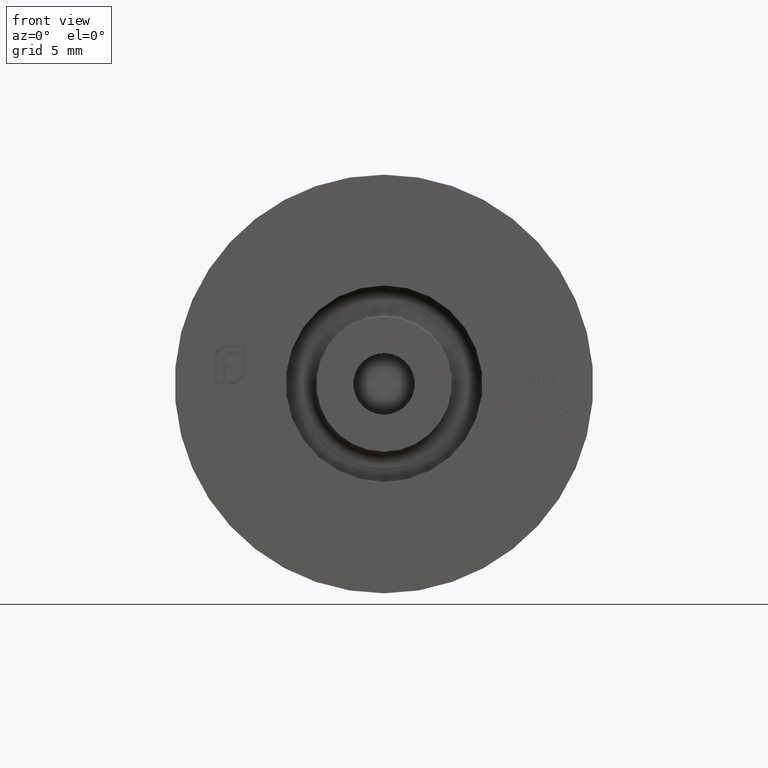
[diagram: clean part render]
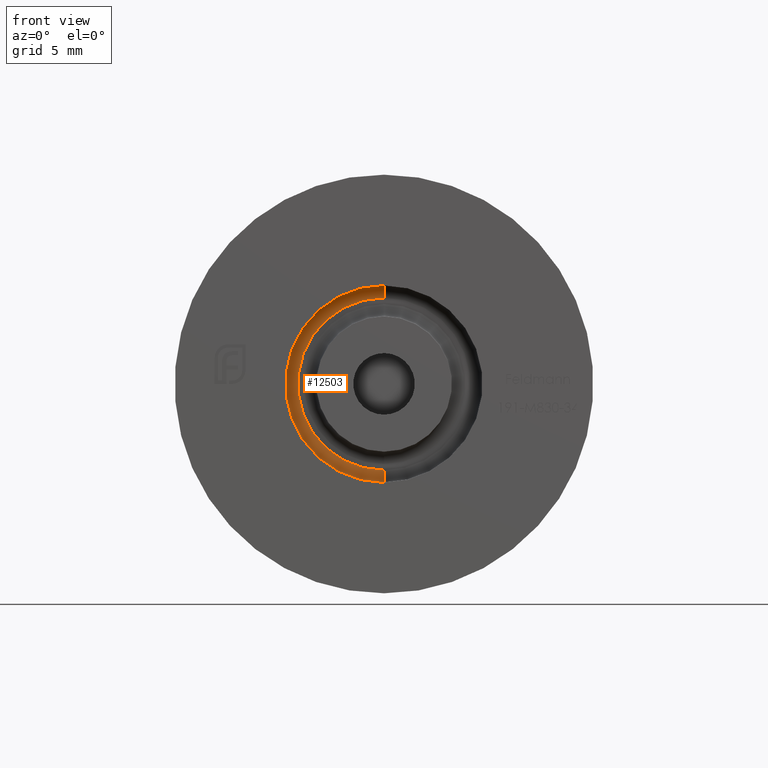
[diagram: same view with one face highlighted and labeled with its STEP entity id]
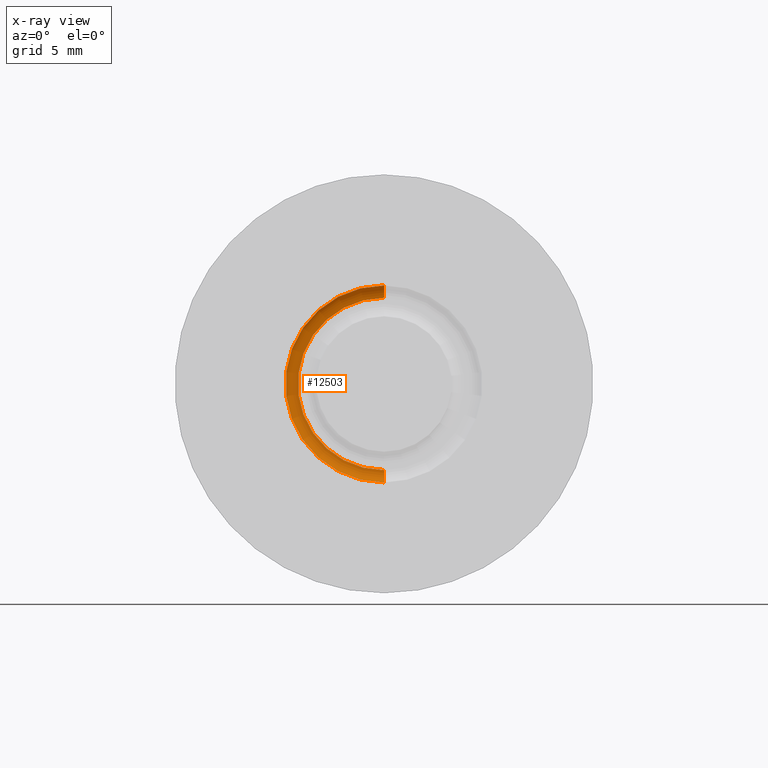
[diagram: x-ray of the same camera — body ghosted, the highlighted face saturated]
A machine part, front view. The second image highlights one B-rep face of the part: STEP entity #12503.
The next image is the same camera in x-ray: the body ghosted, the highlighted face saturated — about 0% of this face is hidden behind the body in this view.
In plain terms, the highlighted toroidal blend (fillet) surface has major radius 7 mm and minor (blend) radius 1 mm.
Its self-contained STEP definition (entity closure, byte-faithful):
#502 = CARTESIAN_POINT ( 'NONE',  ( 0.000000000000000000, 2.000000000000000000, -8.000000000000001776 ) ) ;
#783 = VERTEX_POINT ( 'NONE', #14737 ) ;
#917 = CARTESIAN_POINT ( 'NONE',  ( 9.797174393178827630E-16, 2.000000000000000000, 8.000000000000001776 ) ) ;
#1202 = CIRCLE ( 'NONE', #12814, 1.000000000000000000 ) ;
#1678 = AXIS2_PLACEMENT_3D ( 'NONE', #2332, #2442, #8546 ) ;
#1790 = EDGE_CURVE ( 'NONE', #783, #15998, #6166, .T. ) ;
#2332 = CARTESIAN_POINT ( 'NONE',  ( 0.000000000000000000, 2.000000000000000000, 0.000000000000000000 ) ) ;
#2442 = DIRECTION ( 'NONE',  ( 0.000000000000000000, -1.000000000000000000, 0.000000000000000000 ) ) ;
#2688 = VERTEX_POINT ( 'NONE', #12267 ) ;
#4352 = DIRECTION ( 'NONE',  ( 1.000000000000000000, 0.000000000000000000, -1.224646799147353207E-16 ) ) ;
#4612 = TOROIDAL_SURFACE ( 'NONE', #1678, 7.000000000000001776, 1.000000000000000000 ) ;
#5344 = EDGE_CURVE ( 'NONE', #2688, #10276, #1202, .T. ) ;
#5584 = AXIS2_PLACEMENT_3D ( 'NONE', #14284, #14388, #7000 ) ;
#6166 = CIRCLE ( 'NONE', #12086, 1.000000000000000000 ) ;
#6293 = DIRECTION ( 'NONE',  ( -1.000000000000000000, -0.000000000000000000, -0.000000000000000000 ) ) ;
#6318 = AXIS2_PLACEMENT_3D ( 'NONE', #6446, #8956, #11443 ) ;
#6446 = CARTESIAN_POINT ( 'NONE',  ( 0.000000000000000000, 3.000000000000000000, 0.000000000000000000 ) ) ;
#7000 = DIRECTION ( 'NONE',  ( 0.000000000000000000, 0.000000000000000000, -1.000000000000000000 ) ) ;
#8546 = DIRECTION ( 'NONE',  ( 0.000000000000000000, 0.000000000000000000, -1.000000000000000000 ) ) ;
#8697 = EDGE_LOOP ( 'NONE', ( #11477, #12042, #14931, #9151 ) ) ;
#8809 = EDGE_CURVE ( 'NONE', #783, #2688, #15889, .T. ) ;
#8956 = DIRECTION ( 'NONE',  ( 0.000000000000000000, -1.000000000000000000, 0.000000000000000000 ) ) ;
#9151 = ORIENTED_EDGE ( 'NONE', *, *, #5344, .F. ) ;
#9238 = FACE_OUTER_BOUND ( 'NONE', #8697, .T. ) ;
#10276 = VERTEX_POINT ( 'NONE', #502 ) ;
#11443 = DIRECTION ( 'NONE',  ( 0.000000000000000000, 0.000000000000000000, -1.000000000000000000 ) ) ;
#11477 = ORIENTED_EDGE ( 'NONE', *, *, #8809, .F. ) ;
#11750 = DIRECTION ( 'NONE',  ( -1.224646799147353454E-16, 0.000000000000000000, -1.000000000000000000 ) ) ;
#12042 = ORIENTED_EDGE ( 'NONE', *, *, #1790, .T. ) ;
#12043 = EDGE_CURVE ( 'NONE', #10276, #15998, #12949, .T. ) ;
#12086 = AXIS2_PLACEMENT_3D ( 'NONE', #14255, #4352, #11750 ) ;
#12267 = CARTESIAN_POINT ( 'NONE',  ( 0.000000000000000000, 3.000000000000000000, -7.000000000000001776 ) ) ;
#12282 = DIRECTION ( 'NONE',  ( 0.000000000000000000, 0.000000000000000000, 1.000000000000000000 ) ) ;
#12392 = CARTESIAN_POINT ( 'NONE',  ( 0.000000000000000000, 2.000000000000000000, -7.000000000000001776 ) ) ;
#12503 = ADVANCED_FACE ( 'NONE', ( #9238 ), #4612, .F. ) ;
#12814 = AXIS2_PLACEMENT_3D ( 'NONE', #12392, #6293, #12282 ) ;
#12949 = CIRCLE ( 'NONE', #5584, 8.000000000000001776 ) ;
#14255 = CARTESIAN_POINT ( 'NONE',  ( 8.572527594031474176E-16, 2.000000000000000000, 7.000000000000001776 ) ) ;
#14284 = CARTESIAN_POINT ( 'NONE',  ( 0.000000000000000000, 2.000000000000000000, 0.000000000000000000 ) ) ;
#14388 = DIRECTION ( 'NONE',  ( -0.000000000000000000, 1.000000000000000000, -0.000000000000000000 ) ) ;
#14737 = CARTESIAN_POINT ( 'NONE',  ( 9.184850993605151889E-16, 3.000000000000000000, 7.000000000000001776 ) ) ;
#14931 = ORIENTED_EDGE ( 'NONE', *, *, #12043, .F. ) ;
#15889 = CIRCLE ( 'NONE', #6318, 7.000000000000001776 ) ;
#15998 = VERTEX_POINT ( 'NONE', #917 ) ;